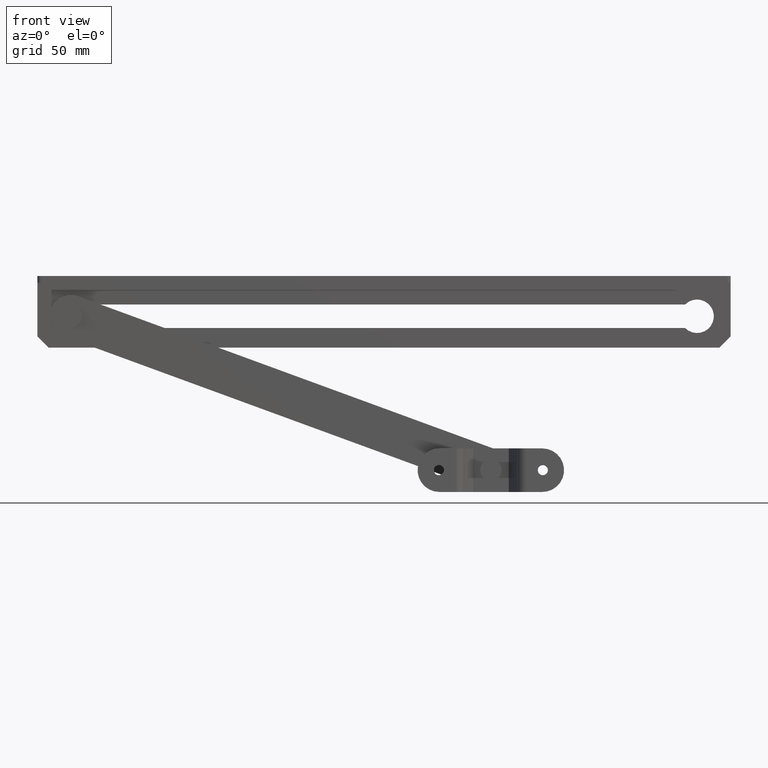
[diagram: clean part render]
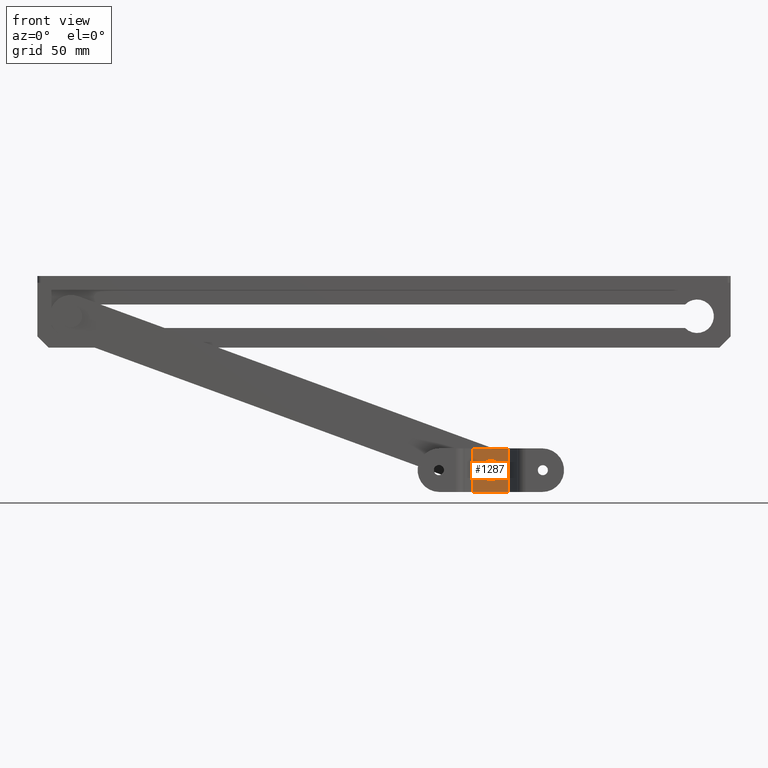
[diagram: same view with one face highlighted and labeled with its STEP entity id]
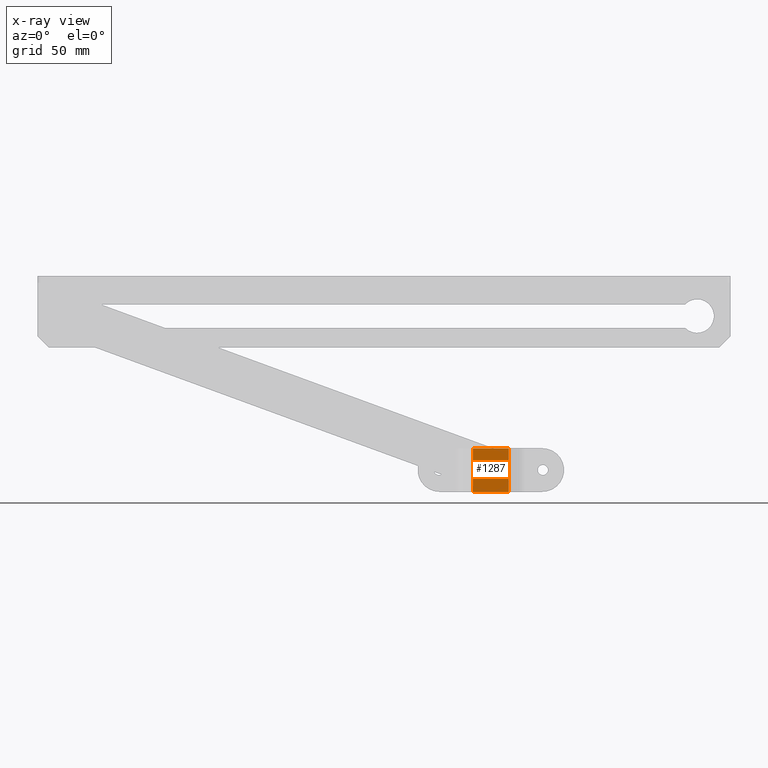
[diagram: x-ray of the same camera — body ghosted, the highlighted face saturated]
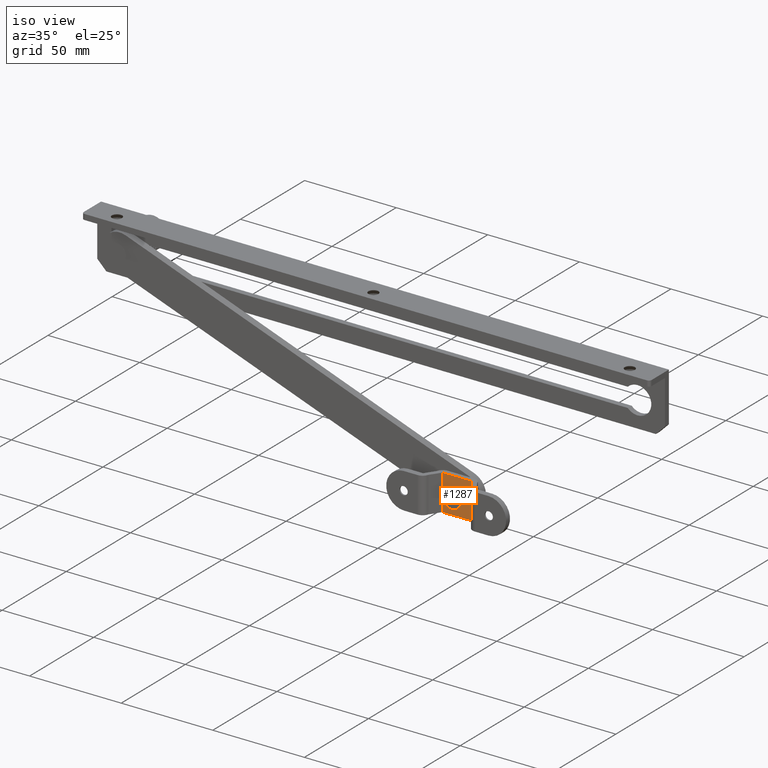
[diagram: same view with one face highlighted and labeled with its STEP entity id]
A machine part, front view. The second image highlights one B-rep face of the part: STEP entity #1287.
The next image is the same camera in x-ray: the body ghosted, the highlighted face saturated — about 0% of this face is hidden behind the body in this view.
A second angle (iso view) of the same face is appended — the face is thin or edge-on in the first view.
In plain terms, the highlighted planar face has unit normal (0, -1, 0).
Its self-contained STEP definition (entity closure, byte-faithful):
#124=LINE('',#2148,#202);
#142=LINE('',#2196,#220);
#146=LINE('',#2206,#224);
#147=LINE('',#2207,#225);
#202=VECTOR('',#1762,16.);
#220=VECTOR('',#1802,19.5);
#224=VECTOR('',#1814,16.);
#225=VECTOR('',#1815,19.5);
#265=PLANE('',#1443);
#348=FACE_BOUND('',#549,.T.);
#425=FACE_OUTER_BOUND('',#548,.T.);
#548=EDGE_LOOP('',(#1145,#1146,#1147,#1148));
#549=EDGE_LOOP('',(#1149));
#626=CIRCLE('',#1421,3.);
#721=VERTEX_POINT('',#2125);
#729=VERTEX_POINT('',#2145);
#730=VERTEX_POINT('',#2147);
#749=VERTEX_POINT('',#2195);
#751=VERTEX_POINT('',#2205);
#854=EDGE_CURVE('',#721,#721,#626,.T.);
#864=EDGE_CURVE('',#730,#729,#124,.T.);
#888=EDGE_CURVE('',#729,#749,#142,.T.);
#893=EDGE_CURVE('',#749,#751,#146,.T.);
#894=EDGE_CURVE('',#751,#730,#147,.T.);
#1145=ORIENTED_EDGE('',*,*,#888,.T.);
#1146=ORIENTED_EDGE('',*,*,#893,.T.);
#1147=ORIENTED_EDGE('',*,*,#894,.T.);
#1148=ORIENTED_EDGE('',*,*,#864,.T.);
#1149=ORIENTED_EDGE('',*,*,#854,.T.);
#1287=ADVANCED_FACE('',(#425,#348),#265,.T.);
#1421=AXIS2_PLACEMENT_3D('',#2126,#1741,#1742);
#1443=AXIS2_PLACEMENT_3D('',#2204,#1812,#1813);
#1741=DIRECTION('center_axis',(0.,-1.,0.));
#1742=DIRECTION('ref_axis',(-1.,0.,0.));
#1762=DIRECTION('',(1.,0.,0.));
#1802=DIRECTION('',(-8.0108765310813E-16,0.,-1.));
#1812=DIRECTION('center_axis',(0.,1.,0.));
#1813=DIRECTION('ref_axis',(0.,0.,1.));
#1814=DIRECTION('',(-1.,0.,0.));
#1815=DIRECTION('',(-1.88764253534453E-16,0.,1.));
#2125=CARTESIAN_POINT('',(-7.99998334620742,3.,9.75));
#2126=CARTESIAN_POINT('Origin',(-10.9999833462074,3.,9.75));
#2145=CARTESIAN_POINT('',(-2.99999999999999,3.,19.5));
#2147=CARTESIAN_POINT('',(-19.,3.,19.5));
#2148=CARTESIAN_POINT('',(-22.,3.,19.5));
#2195=CARTESIAN_POINT('',(-3.,3.,-4.97280644414892E-15));
#2196=CARTESIAN_POINT('',(-3.,3.,14.625));
#2204=CARTESIAN_POINT('Origin',(-11.,3.,9.75));
#2205=CARTESIAN_POINT('',(-19.,3.,0.));
#2206=CARTESIAN_POINT('',(0.,3.,0.));
#2207=CARTESIAN_POINT('',(-19.,3.,14.625));